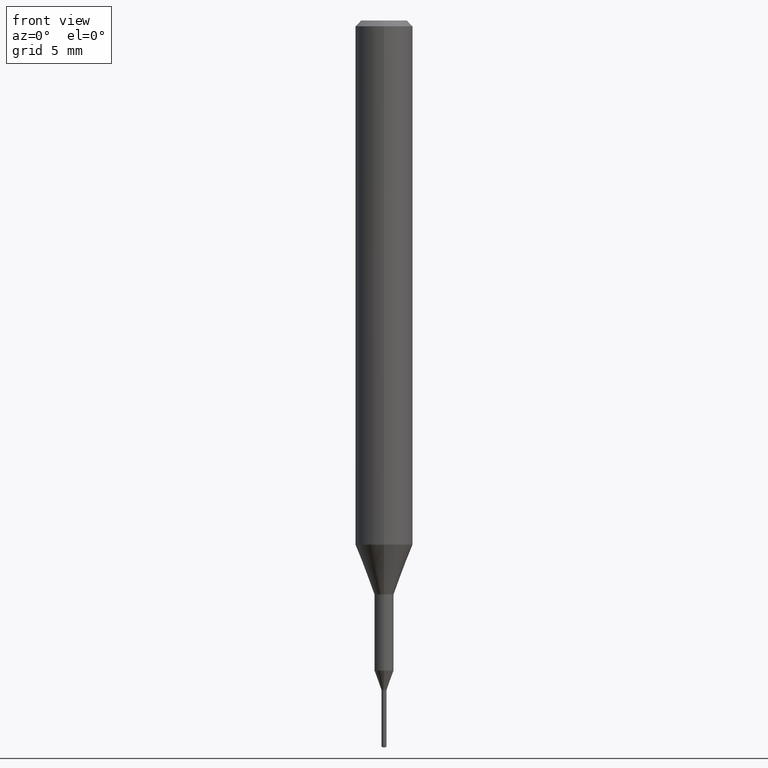
[diagram: clean part render]
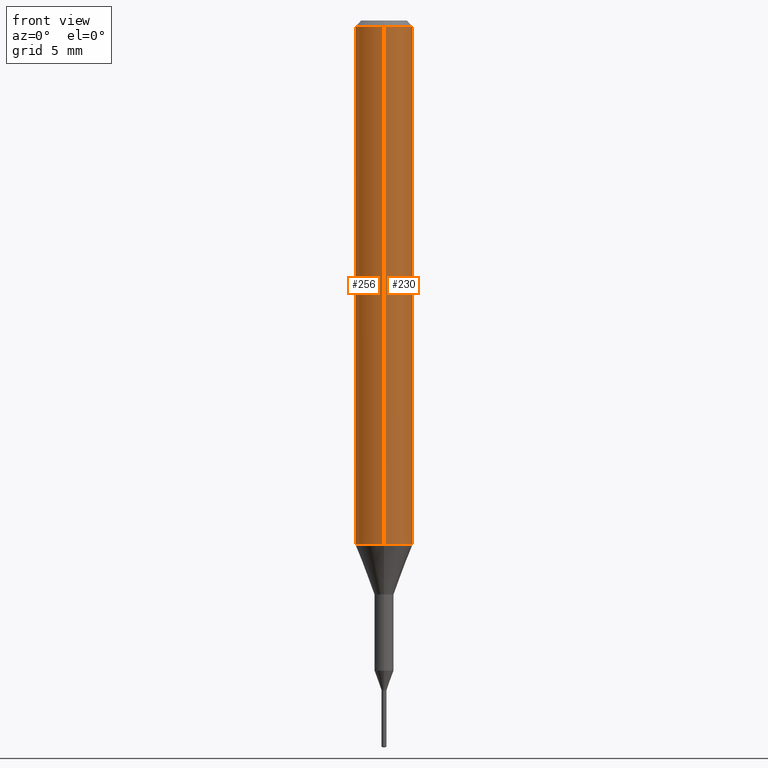
[diagram: same view with one multi-face feature highlighted, each face labeled with its STEP entity id]
A machine part, front view. The highlighted faces form ONE feature: a constant-radius fillet chain: 2 tangent blend faces with common blend radius 1.5 mm. The faces share edges in the B-rep.
Their STEP definitions:
[1] entity #256 (Cylinder):
#118=VERTEX_POINT('',#295);
#128=VERTEX_POINT('',#306);
#154=VERTEX_POINT('',#337);
#162=EDGE_CURVE('',#258,#118,#347,.T.);
#166=EDGE_CURVE('',#118,#154,#351,.T.);
#252=EDGE_CURVE('',#128,#154,#448,.T.);
#256=ADVANCED_FACE('',(#453),#454,.T.);
#258=VERTEX_POINT('',#456);
#260=EDGE_CURVE('',#128,#258,#458,.T.);
#295=CARTESIAN_POINT('',(0.0,1.5,-0.300000000000001));
#306=CARTESIAN_POINT('',(1.83690953073357E-016,-1.5,-27.395));
#337=CARTESIAN_POINT('',(0.0,1.5,-27.395));
#347=CIRCLE('',#548,1.5);
#351=LINE('',#554,#555);
#448=CIRCLE('',#682,1.5);
#453=FACE_OUTER_BOUND('',#687,.T.);
#454=CYLINDRICAL_SURFACE('',#688,1.5);
#456=CARTESIAN_POINT('',(1.83690953073357E-016,-1.5,-0.300000000000001));
#458=LINE('',#693,#694);
#548=AXIS2_PLACEMENT_3D('',#787,#788,#789);
#554=CARTESIAN_POINT('',(-1.83690953073357E-016,1.5,-13.8475));
#555=VECTOR('',#793,1.0);
#682=AXIS2_PLACEMENT_3D('',#916,#917,#918);
#687=EDGE_LOOP('',(#928,#929,#930,#931));
#688=AXIS2_PLACEMENT_3D('',#932,#933,#934);
#693=CARTESIAN_POINT('',(1.83690953073357E-016,-1.5,-13.8475));
#694=VECTOR('',#935,1.0);
#787=CARTESIAN_POINT('',(0.0,0.0,-0.300000000000001));
#788=DIRECTION('',(0.0,0.0,-1.0));
#789=DIRECTION('',(0.0,1.0,0.0));
#793=DIRECTION('',(0.0,0.0,-1.0));
#916=CARTESIAN_POINT('',(0.0,0.0,-27.395));
#917=DIRECTION('',(0.0,0.0,-1.0));
#918=DIRECTION('',(0.0,1.0,0.0));
#928=ORIENTED_EDGE('',*,*,#166,.T.);
#929=ORIENTED_EDGE('',*,*,#252,.F.);
#930=ORIENTED_EDGE('',*,*,#260,.T.);
#931=ORIENTED_EDGE('',*,*,#162,.T.);
#932=CARTESIAN_POINT('',(0.0,0.0,-13.8475));
#933=DIRECTION('',(-0.0,-0.0,1.0));
#934=DIRECTION('',(0.0,1.0,0.0));
#935=DIRECTION('',(-0.0,-0.0,1.0));
[2] entity #230 (Cylinder):
#118=VERTEX_POINT('',#295);
#128=VERTEX_POINT('',#306);
#142=EDGE_CURVE('',#154,#128,#321,.T.);
#154=VERTEX_POINT('',#337);
#166=EDGE_CURVE('',#118,#154,#351,.T.);
#222=EDGE_CURVE('',#118,#258,#415,.T.);
#230=ADVANCED_FACE('',(#423),#424,.T.);
#258=VERTEX_POINT('',#456);
#260=EDGE_CURVE('',#128,#258,#458,.T.);
#295=CARTESIAN_POINT('',(0.0,1.5,-0.300000000000001));
#306=CARTESIAN_POINT('',(1.83690953073357E-016,-1.5,-27.395));
#321=CIRCLE('',#521,1.5);
#337=CARTESIAN_POINT('',(0.0,1.5,-27.395));
#351=LINE('',#554,#555);
#415=CIRCLE('',#642,1.5);
#423=FACE_OUTER_BOUND('',#651,.T.);
#424=CYLINDRICAL_SURFACE('',#652,1.5);
#456=CARTESIAN_POINT('',(1.83690953073357E-016,-1.5,-0.300000000000001));
#458=LINE('',#693,#694);
#521=AXIS2_PLACEMENT_3D('',#740,#741,#742);
#554=CARTESIAN_POINT('',(-1.83690953073357E-016,1.5,-13.8475));
#555=VECTOR('',#793,1.0);
#642=AXIS2_PLACEMENT_3D('',#883,#884,#885);
#651=EDGE_LOOP('',(#889,#890,#891,#892));
#652=AXIS2_PLACEMENT_3D('',#893,#894,#895);
#693=CARTESIAN_POINT('',(1.83690953073357E-016,-1.5,-13.8475));
#694=VECTOR('',#935,1.0);
#740=CARTESIAN_POINT('',(0.0,0.0,-27.395));
#741=DIRECTION('',(0.0,0.0,-1.0));
#742=DIRECTION('',(0.0,1.0,0.0));
#793=DIRECTION('',(0.0,0.0,-1.0));
#883=CARTESIAN_POINT('',(0.0,0.0,-0.300000000000001));
#884=DIRECTION('',(0.0,0.0,-1.0));
#885=DIRECTION('',(0.0,1.0,0.0));
#889=ORIENTED_EDGE('',*,*,#166,.F.);
#890=ORIENTED_EDGE('',*,*,#222,.T.);
#891=ORIENTED_EDGE('',*,*,#260,.F.);
#892=ORIENTED_EDGE('',*,*,#142,.F.);
#893=CARTESIAN_POINT('',(0.0,0.0,-13.8475));
#894=DIRECTION('',(-0.0,-0.0,1.0));
#895=DIRECTION('',(0.0,1.0,0.0));
#935=DIRECTION('',(-0.0,-0.0,1.0));